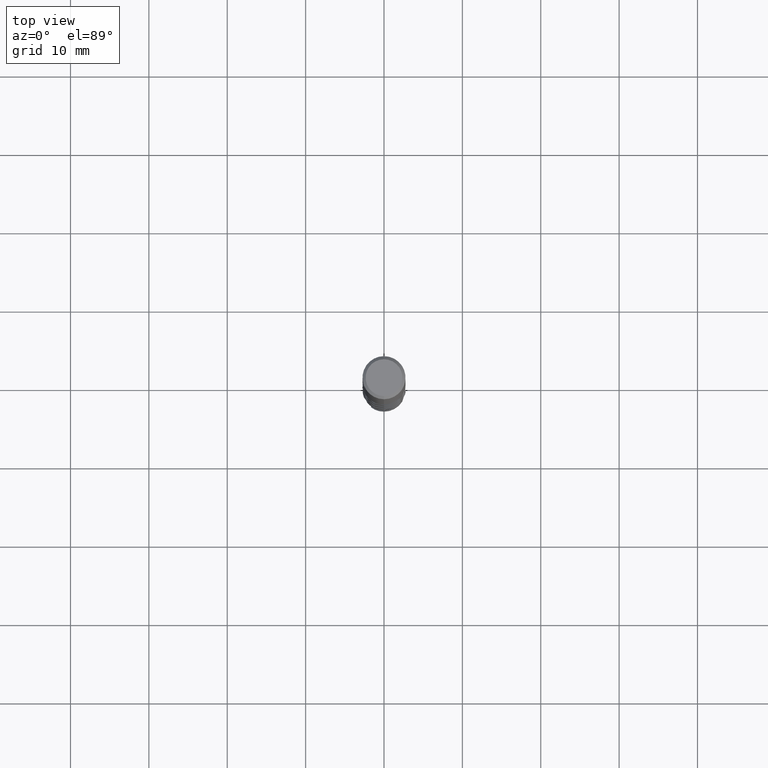
[diagram: clean part render]
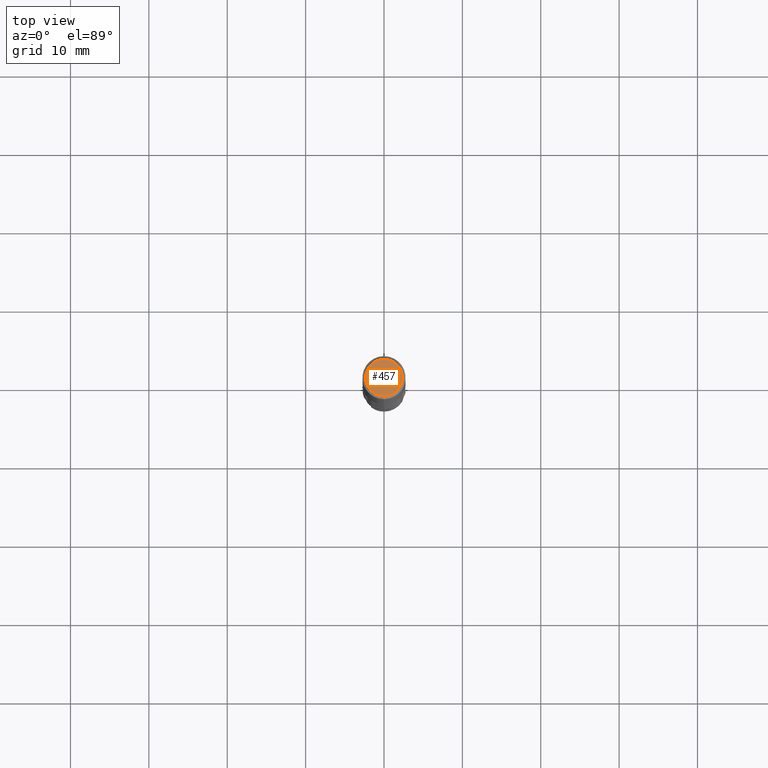
[diagram: same view with one face highlighted and labeled with its STEP entity id]
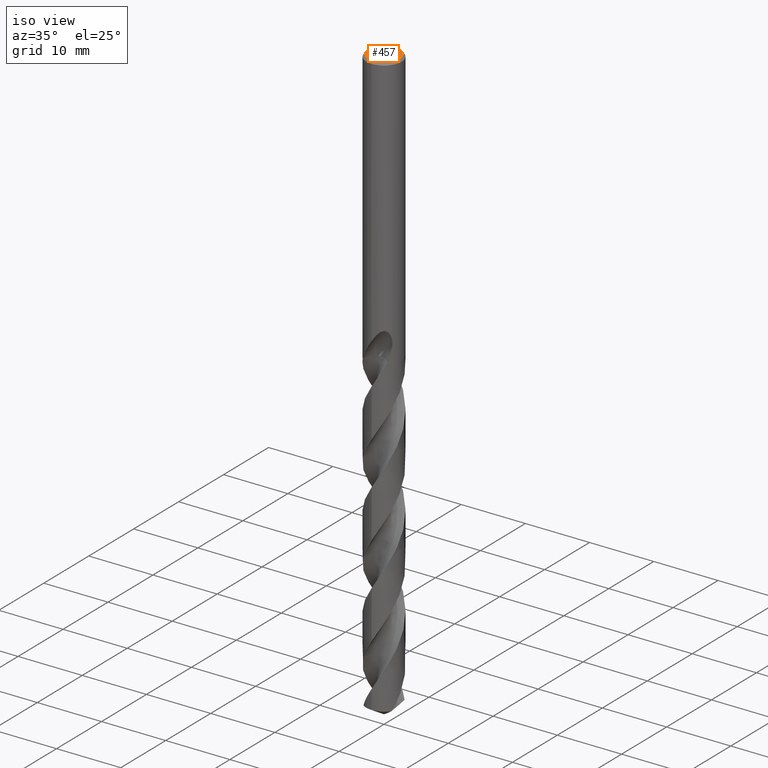
[diagram: same view with one face highlighted and labeled with its STEP entity id]
A machine part, top view. The second image highlights one B-rep face of the part: STEP entity #457.
A second angle (iso view) of the same face is appended — the face is thin or edge-on in the first view.
In plain terms, the highlighted planar face has unit normal (-0, 0, 1).
Its self-contained STEP definition (entity closure, byte-faithful):
#289=EDGE_CURVE('',#347,#533,#789,.T.);
#343=EDGE_CURVE('',#533,#347,#849,.T.);
#347=VERTEX_POINT('',#853);
#457=ADVANCED_FACE('',(#973),#974,.T.);
#533=VERTEX_POINT('',#1056);
#789=CIRCLE('',#1334,2.35);
#849=CIRCLE('',#2261,2.35);
#853=CARTESIAN_POINT('',(2.87782493148259E-016,-2.35,0.0));
#973=FACE_OUTER_BOUND('',#4440,.T.);
#974=PLANE('',#4441);
#1056=CARTESIAN_POINT('',(0.0,2.35,0.0));
#1334=AXIS2_PLACEMENT_3D('',#8832,#8833,#8834);
#2261=AXIS2_PLACEMENT_3D('',#8925,#8926,#8927);
#4440=EDGE_LOOP('',(#9047,#9048));
#4441=AXIS2_PLACEMENT_3D('',#9049,#9050,#9051);
#8832=CARTESIAN_POINT('',(0.0,0.0,0.0));
#8833=DIRECTION('',(0.0,0.0,-1.0));
#8834=DIRECTION('',(0.0,1.0,0.0));
#8925=CARTESIAN_POINT('',(0.0,0.0,0.0));
#8926=DIRECTION('',(0.0,0.0,-1.0));
#8927=DIRECTION('',(0.0,1.0,0.0));
#9047=ORIENTED_EDGE('',*,*,#343,.F.);
#9048=ORIENTED_EDGE('',*,*,#289,.F.);
#9049=CARTESIAN_POINT('',(0.0,1.175,0.0));
#9050=DIRECTION('',(-0.0,0.0,1.0));
#9051=DIRECTION('',(0.0,-1.0,0.0));